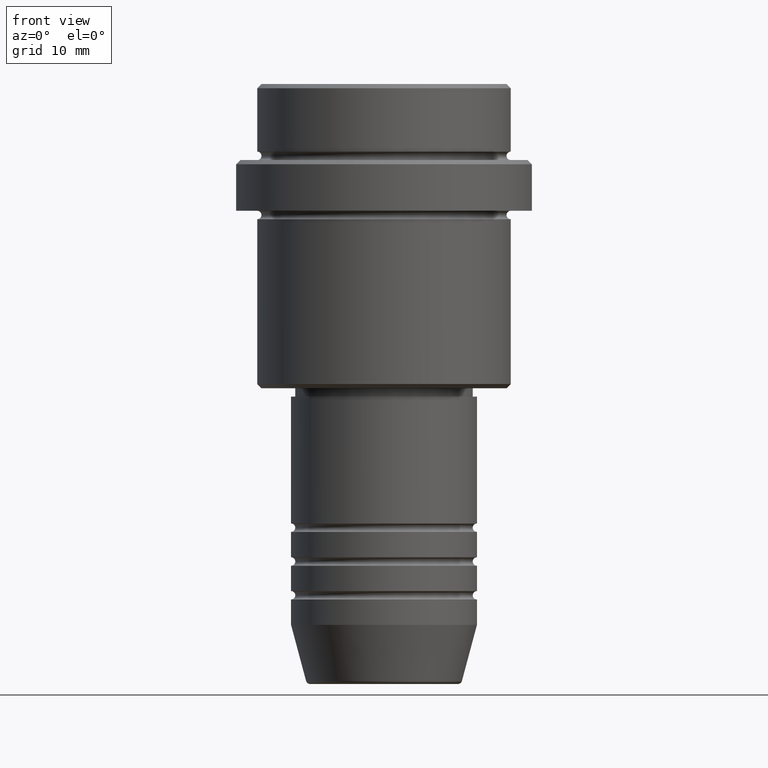
[diagram: clean part render]
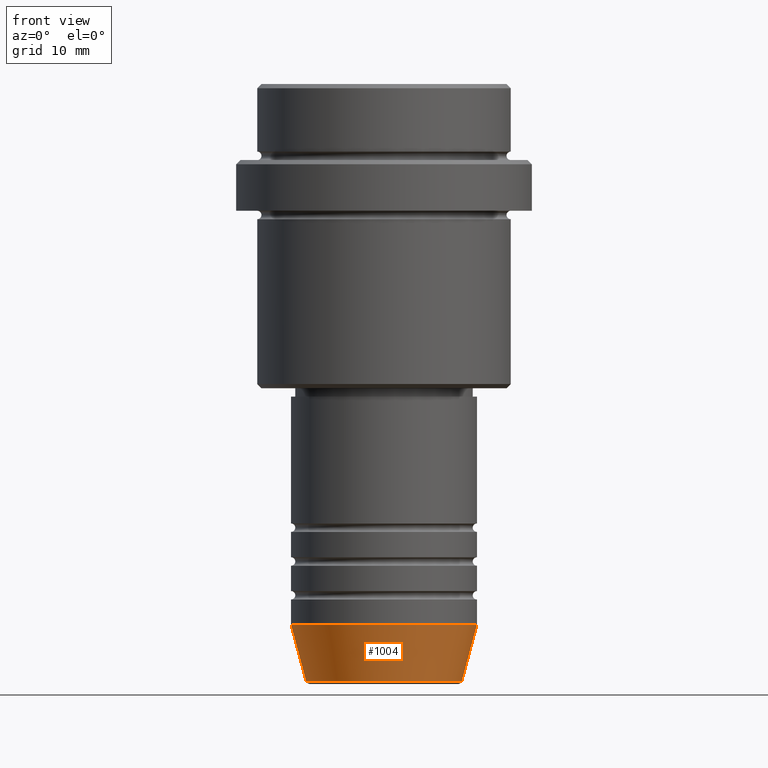
[diagram: same view with one face highlighted and labeled with its STEP entity id]
A machine part, front view. The second image highlights one B-rep face of the part: STEP entity #1004.
In plain terms, the highlighted conical surface has half-angle 15 deg.
Its self-contained STEP definition (entity closure, byte-faithful):
#30 = ORIENTED_EDGE ( 'NONE', *, *, #1186, .T. ) ;
#38 = EDGE_CURVE ( 'NONE', #41, #1331, #663, .T. ) ;
#41 = VERTEX_POINT ( 'NONE', #1068 ) ;
#111 = CONICAL_SURFACE ( 'NONE', #203, 11.00000000000000000, 0.2617993877991500740 ) ;
#122 = ORIENTED_EDGE ( 'NONE', *, *, #1217, .F. ) ;
#203 = AXIS2_PLACEMENT_3D ( 'NONE', #1280, #299, #610 ) ;
#280 = CARTESIAN_POINT ( 'NONE',  ( -11.00000000000000000, 1.347111479062088405E-15, -64.00000000000000000 ) ) ;
#299 = DIRECTION ( 'NONE',  ( -0.000000000000000000, -0.000000000000000000, 1.000000000000000000 ) ) ;
#304 = CARTESIAN_POINT ( 'NONE',  ( 0.000000000000000000, 0.000000000000000000, -70.62940952255125637 ) ) ;
#359 = LINE ( 'NONE', #381, #567 ) ;
#381 = CARTESIAN_POINT ( 'NONE',  ( -11.00000000000000000, 1.347111479062088405E-15, -64.00000000000000000 ) ) ;
#388 = DIRECTION ( 'NONE',  ( 0.2588190451025213501, 0.000000000000000000, 0.9659258262890680902 ) ) ;
#457 = CIRCLE ( 'NONE', #867, 11.00000000000000000 ) ;
#464 = EDGE_LOOP ( 'NONE', ( #1101, #484, #30, #122 ) ) ;
#484 = ORIENTED_EDGE ( 'NONE', *, *, #38, .T. ) ;
#567 = VECTOR ( 'NONE', #1003, 1000.000000000000000 ) ;
#596 = CARTESIAN_POINT ( 'NONE',  ( 11.00000000000000000, 0.000000000000000000, -64.00000000000000000 ) ) ;
#600 = VERTEX_POINT ( 'NONE', #596 ) ;
#610 = DIRECTION ( 'NONE',  ( 1.000000000000000000, 0.000000000000000000, 0.000000000000000000 ) ) ;
#635 = DIRECTION ( 'NONE',  ( 1.000000000000000000, 0.000000000000000000, 0.000000000000000000 ) ) ;
#663 = CIRCLE ( 'NONE', #1095, 9.223655072137187716 ) ;
#832 = DIRECTION ( 'NONE',  ( 1.000000000000000000, 0.000000000000000000, 0.000000000000000000 ) ) ;
#865 = DIRECTION ( 'NONE',  ( -0.000000000000000000, -0.000000000000000000, 1.000000000000000000 ) ) ;
#867 = AXIS2_PLACEMENT_3D ( 'NONE', #1154, #950, #832 ) ;
#950 = DIRECTION ( 'NONE',  ( -0.000000000000000000, -0.000000000000000000, 1.000000000000000000 ) ) ;
#1003 = DIRECTION ( 'NONE',  ( -0.2588190451025213501, 3.169619151431772337E-17, 0.9659258262890680902 ) ) ;
#1004 = ADVANCED_FACE ( 'NONE', ( #1173 ), #111, .T. ) ;
#1010 = VERTEX_POINT ( 'NONE', #280 ) ;
#1050 = LINE ( 'NONE', #1380, #1300 ) ;
#1068 = CARTESIAN_POINT ( 'NONE',  ( -9.223655072137187716, 1.238341722557647004E-15, -70.62940952255125637 ) ) ;
#1070 = EDGE_CURVE ( 'NONE', #41, #1010, #359, .T. ) ;
#1095 = AXIS2_PLACEMENT_3D ( 'NONE', #304, #865, #635 ) ;
#1101 = ORIENTED_EDGE ( 'NONE', *, *, #1070, .F. ) ;
#1154 = CARTESIAN_POINT ( 'NONE',  ( 0.000000000000000000, 0.000000000000000000, -64.00000000000000000 ) ) ;
#1173 = FACE_OUTER_BOUND ( 'NONE', #464, .T. ) ;
#1186 = EDGE_CURVE ( 'NONE', #1331, #600, #1050, .T. ) ;
#1217 = EDGE_CURVE ( 'NONE', #1010, #600, #457, .T. ) ;
#1280 = CARTESIAN_POINT ( 'NONE',  ( 0.000000000000000000, 0.000000000000000000, -64.00000000000000000 ) ) ;
#1300 = VECTOR ( 'NONE', #388, 1000.000000000000000 ) ;
#1331 = VERTEX_POINT ( 'NONE', #1407 ) ;
#1380 = CARTESIAN_POINT ( 'NONE',  ( 11.00000000000000000, 0.000000000000000000, -64.00000000000000000 ) ) ;
#1407 = CARTESIAN_POINT ( 'NONE',  ( 9.223655072137187716, 0.000000000000000000, -70.62940952255125637 ) ) ;